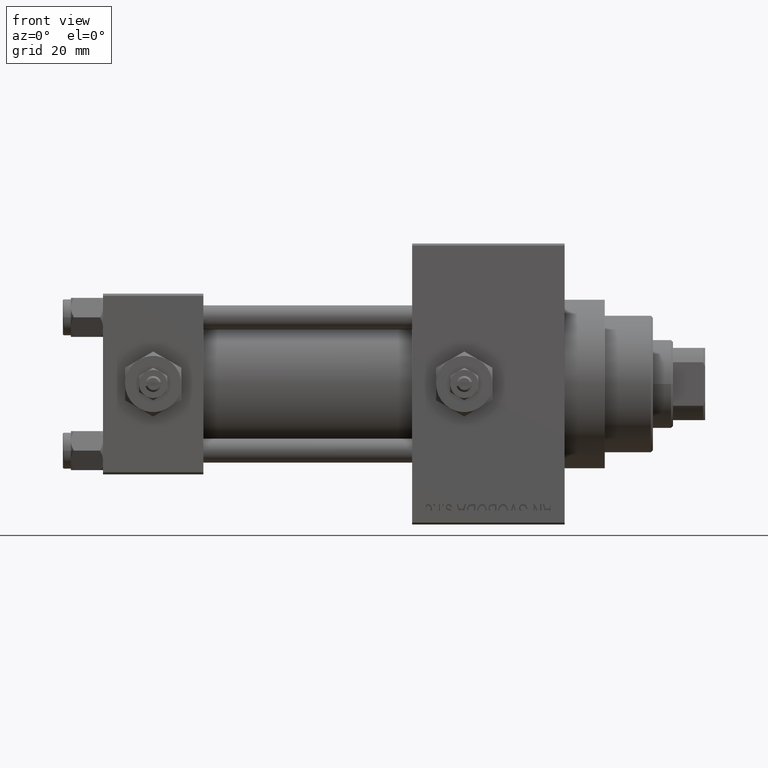
[diagram: clean part render]
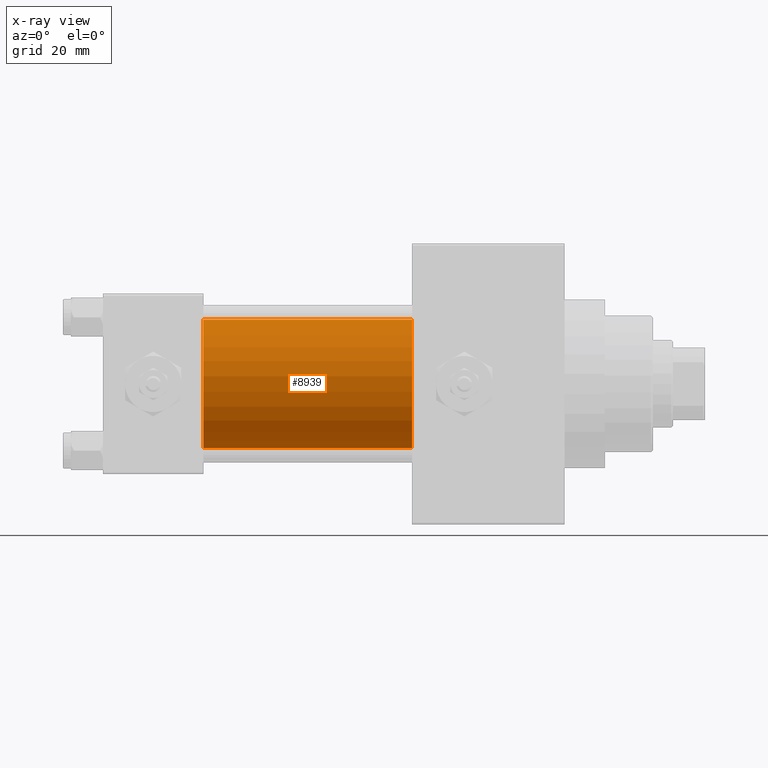
[diagram: x-ray — body ghosted, one internal face saturated and labeled with its STEP entity id]
A machine part, front view, then the same camera in x-ray: the body is ghosted and one INTERNAL B-rep face — a face not visible from any outside direction — is saturated and labeled: STEP entity #8939.
In plain terms, the highlighted cylindrical surface (partial cylindrical patch) has radius 16 mm, axis along (-1, -0, -0).
Its self-contained STEP definition (entity closure, byte-faithful):
#6022 = VERTEX_POINT ( 'NONE', #19570 ) ;
#6029 = LINE ( 'NONE', #21171, #32365 ) ;
#6790 = AXIS2_PLACEMENT_3D ( 'NONE', #35007, #42697, #46174 ) ;
#8939 = ADVANCED_FACE ( 'NONE', ( #46044 ), #11561, .F. ) ;
#10847 = EDGE_CURVE ( 'NONE', #31083, #23838, #21073, .T. ) ;
#11561 = CYLINDRICAL_SURFACE ( 'NONE', #44768, 16.00000000000000000 ) ;
#13931 = DIRECTION ( 'NONE',  ( -1.000000000000000000, -0.000000000000000000, -0.000000000000000000 ) ) ;
#14394 = VERTEX_POINT ( 'NONE', #35524 ) ;
#16371 = CARTESIAN_POINT ( 'NONE',  ( 25.00000000000000000, -6.426503353294460032E-16, -16.00000000000000000 ) ) ;
#19570 = CARTESIAN_POINT ( 'NONE',  ( 77.00000000000000000, -6.426503353294460032E-16, -16.00000000000000000 ) ) ;
#19784 = EDGE_CURVE ( 'NONE', #14394, #31083, #22110, .T. ) ;
#21073 = CIRCLE ( 'NONE', #6790, 16.00000000000000000 ) ;
#21171 = CARTESIAN_POINT ( 'NONE',  ( 77.00000000000000000, -6.426503353294460032E-16, -16.00000000000000000 ) ) ;
#22110 = LINE ( 'NONE', #48167, #29964 ) ;
#22177 = DIRECTION ( 'NONE',  ( 0.000000000000000000, 0.000000000000000000, -1.000000000000000000 ) ) ;
#22718 = CARTESIAN_POINT ( 'NONE',  ( 25.00000000000000000, -2.602085213965210642E-15, 16.00000000000000000 ) ) ;
#23838 = VERTEX_POINT ( 'NONE', #16371 ) ;
#25450 = AXIS2_PLACEMENT_3D ( 'NONE', #28653, #43783, #22177 ) ;
#27105 = EDGE_CURVE ( 'NONE', #14394, #6022, #34948, .T. ) ;
#27194 = DIRECTION ( 'NONE',  ( -1.000000000000000000, -0.000000000000000000, -0.000000000000000000 ) ) ;
#27673 = CARTESIAN_POINT ( 'NONE',  ( 77.00000000000000000, -2.602085213965210642E-15, 0.000000000000000000 ) ) ;
#28653 = CARTESIAN_POINT ( 'NONE',  ( 77.00000000000000000, -2.602085213965210642E-15, 0.000000000000000000 ) ) ;
#29964 = VECTOR ( 'NONE', #13931, 1000.000000000000000 ) ;
#31083 = VERTEX_POINT ( 'NONE', #22718 ) ;
#32365 = VECTOR ( 'NONE', #36296, 1000.000000000000000 ) ;
#33742 = ORIENTED_EDGE ( 'NONE', *, *, #37919, .T. ) ;
#34948 = CIRCLE ( 'NONE', #25450, 16.00000000000000000 ) ;
#35007 = CARTESIAN_POINT ( 'NONE',  ( 25.00000000000000000, -2.602085213965210642E-15, 0.000000000000000000 ) ) ;
#35524 = CARTESIAN_POINT ( 'NONE',  ( 77.00000000000000000, -2.602085213965210642E-15, 16.00000000000000000 ) ) ;
#36296 = DIRECTION ( 'NONE',  ( -1.000000000000000000, -0.000000000000000000, -0.000000000000000000 ) ) ;
#37919 = EDGE_CURVE ( 'NONE', #6022, #23838, #6029, .T. ) ;
#38670 = EDGE_LOOP ( 'NONE', ( #43447, #33742, #40986, #47109 ) ) ;
#40986 = ORIENTED_EDGE ( 'NONE', *, *, #10847, .F. ) ;
#41839 = DIRECTION ( 'NONE',  ( 0.000000000000000000, 0.000000000000000000, 1.000000000000000000 ) ) ;
#42697 = DIRECTION ( 'NONE',  ( 1.000000000000000000, 0.000000000000000000, 0.000000000000000000 ) ) ;
#43447 = ORIENTED_EDGE ( 'NONE', *, *, #27105, .T. ) ;
#43783 = DIRECTION ( 'NONE',  ( 1.000000000000000000, 0.000000000000000000, 0.000000000000000000 ) ) ;
#44768 = AXIS2_PLACEMENT_3D ( 'NONE', #27673, #27194, #41839 ) ;
#46044 = FACE_OUTER_BOUND ( 'NONE', #38670, .T. ) ;
#46174 = DIRECTION ( 'NONE',  ( 0.000000000000000000, 0.000000000000000000, -1.000000000000000000 ) ) ;
#47109 = ORIENTED_EDGE ( 'NONE', *, *, #19784, .F. ) ;
#48167 = CARTESIAN_POINT ( 'NONE',  ( 77.00000000000000000, -2.602085213965210642E-15, 16.00000000000000000 ) ) ;